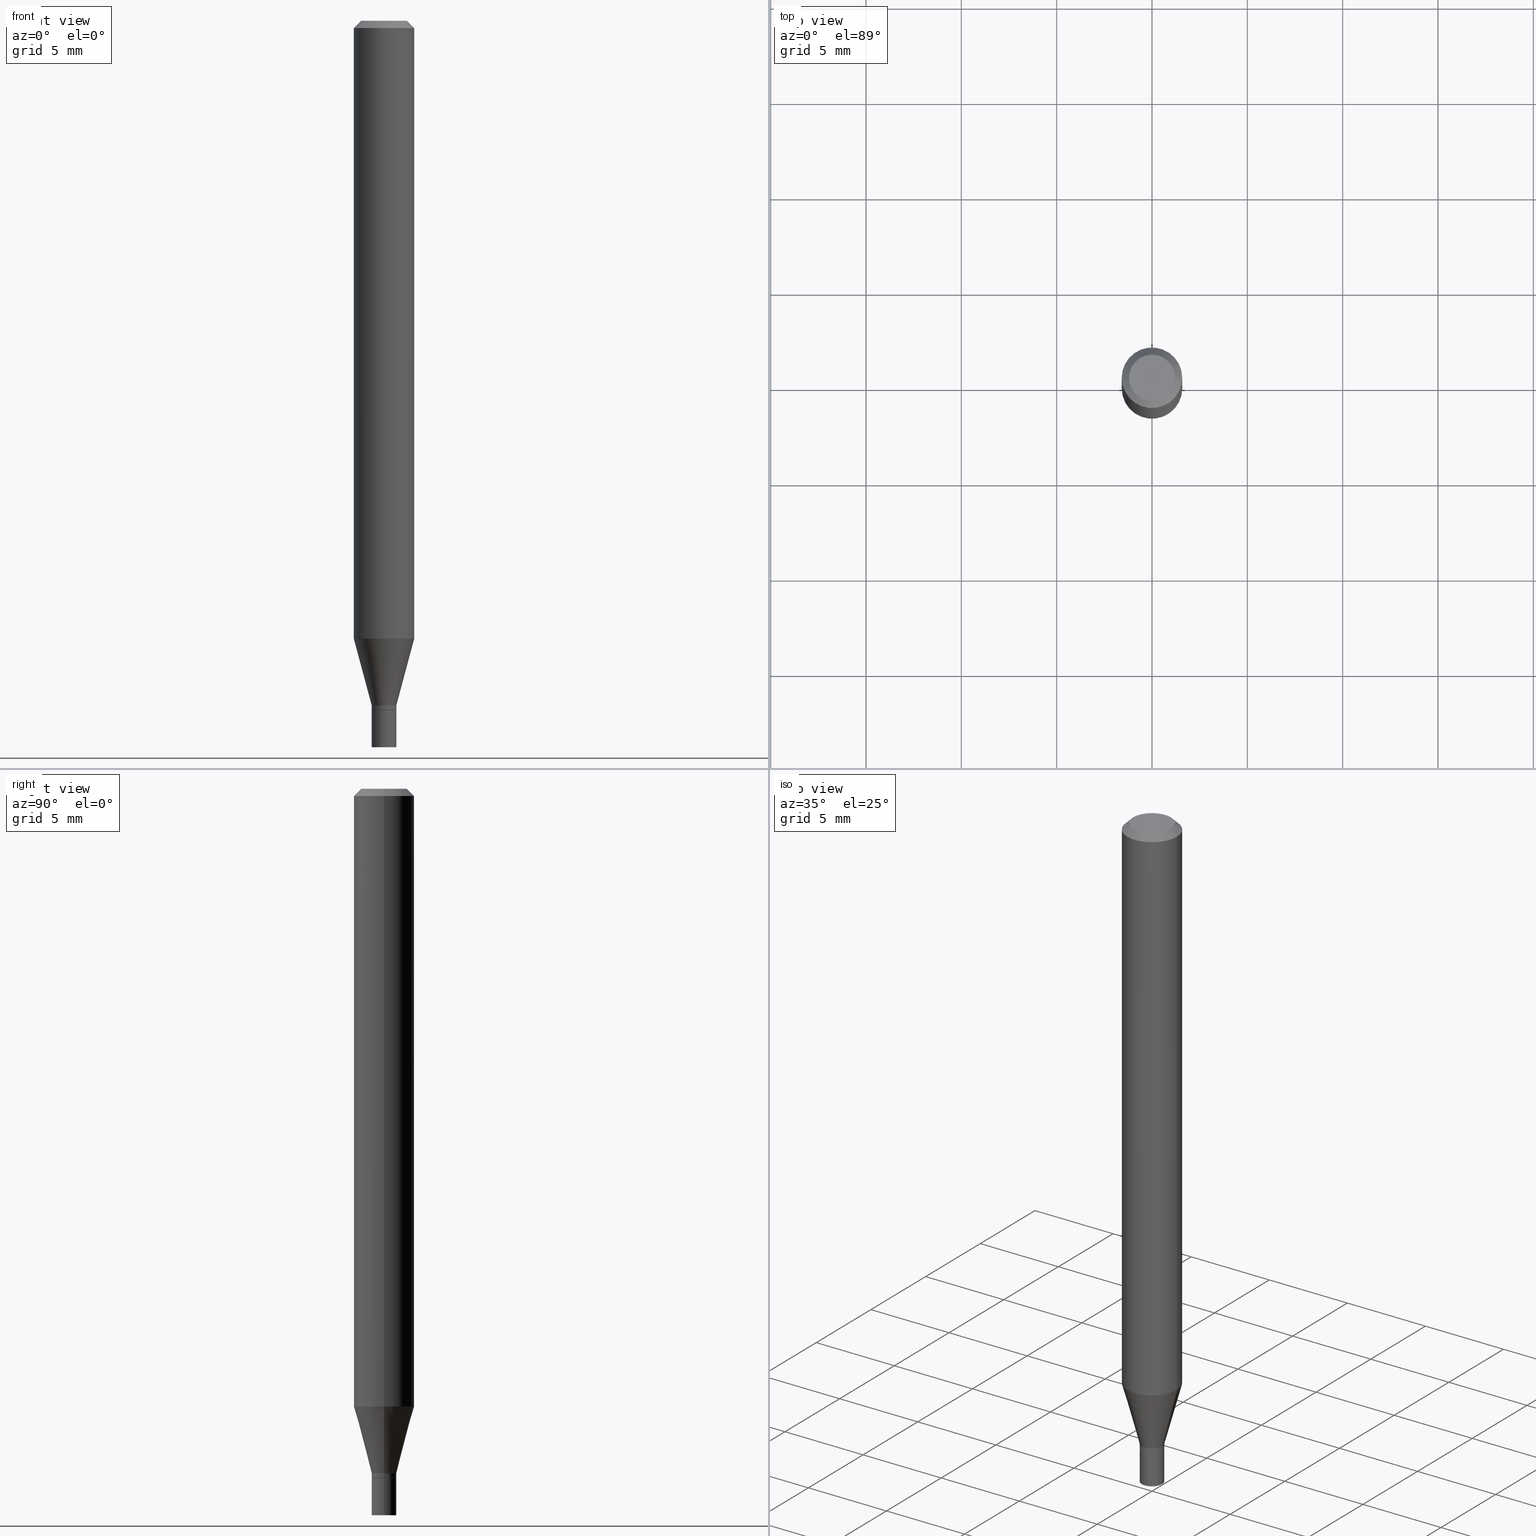
[diagram: canonical four-view strip — front | top / right | iso, engineering-drawing reading convention]
A machine part, canonical four-view strip (front | top / right | iso — engineering-drawing reading convention). The complete STEP part file that produces these views, byte-faithful:
ISO-10303-21;
HEADER;
FILE_DESCRIPTION (( 'STEP AP203' ),
    '1' );
FILE_NAME ('01131.STEP',
    '2024-03-19T23:12:32',
    ( '' ),
    ( '' ),
    'SwSTEP 2.0',
    'SolidWorks 2023',
    '' );
FILE_SCHEMA (( 'CONFIG_CONTROL_DESIGN' ));
ENDSEC;

DATA;
#1 = CARTESIAN_POINT ( 'NONE',  ( 3.668203209277704895E-29, -5.237222008264718177E-15, -1.500000000000000222 ) ) ;
#2 = PRODUCT_DEFINITION_SHAPE ( 'NONE', 'NONE',  #39 ) ;
#3 = DIMENSIONAL_EXPONENTS ( 1.000000000000000000, 0.000000000000000000, 0.000000000000000000, 0.000000000000000000, 0.000000000000000000, 0.000000000000000000, 0.000000000000000000 ) ;
#4 = CARTESIAN_POINT ( 'NONE',  ( -0.02549999999999999836, -4.922484449435141923E-15, -1.500000000000000222 ) ) ;
#5 = DIRECTION ( 'NONE',  ( 1.000000000000000000, -6.982962677686266711E-15, 0.000000000000000000 ) ) ;
#6 = AXIS2_PLACEMENT_3D ( 'NONE', #229, #188, #297 ) ;
#7 = CONICAL_SURFACE ( 'NONE', #248, 0.06250000000000000000, 0.7853981633974667087 ) ;
#8 = EDGE_LOOP ( 'NONE', ( #81, #404, #449, #135 ) ) ;
#9 = COORDINATED_UNIVERSAL_TIME_OFFSET ( 5, 0, .BEHIND. ) ;
#10 = DIRECTION ( 'NONE',  ( 1.000000000000000000, -6.982962677686267499E-15, 4.852736867747366768E-29 ) ) ;
#11 = ORIENTED_EDGE ( 'NONE', *, *, #398, .T. ) ;
#12 = LINE ( 'NONE', #416, #44 ) ;
#13 = AXIS2_PLACEMENT_3D ( 'NONE', #420, #132, #245 ) ;
#14 = DIRECTION ( 'NONE',  ( -2.445468806185136597E-29, 3.491481338843145583E-15, 1.000000000000000000 ) ) ;
#15 = ORIENTED_EDGE ( 'NONE', *, *, #201, .T. ) ;
#16 = CC_DESIGN_PERSON_AND_ORGANIZATION_ASSIGNMENT ( #343, #24, ( #51 ) ) ;
#17 = CIRCLE ( 'NONE', #246, 0.06250000000000000000 ) ;
#18 = CONICAL_SURFACE ( 'NONE', #57, 0.02549999999999992203, 0.2617993877991494078 ) ;
#19 = DATE_AND_TIME ( #242, #111 ) ;
#20 = ORIENTED_EDGE ( 'NONE', *, *, #53, .T. ) ;
#21 = CARTESIAN_POINT ( 'NONE',  ( 3.668203209277705088E-31, -5.237222008264718399E-17, -0.01499999999999999944 ) ) ;
#22 = DATE_AND_TIME ( #168, #238 ) ;
#23 = CC_DESIGN_PERSON_AND_ORGANIZATION_ASSIGNMENT ( #89, #127, ( #39 ) ) ;
#24 = PERSON_AND_ORGANIZATION_ROLE ( 'design_supplier' ) ;
#25 = ORIENTED_EDGE ( 'NONE', *, *, #360, .T. ) ;
#26 = CARTESIAN_POINT ( 'NONE',  ( -0.02549999999999999836, -4.922484449435141923E-15, -1.423499999999999988 ) ) ;
#27 = CIRCLE ( 'NONE', #444, 0.02549999999999999836 ) ;
#28 = EDGE_LOOP ( 'NONE', ( #124, #131 ) ) ;
#29 = DIRECTION ( 'NONE',  ( 1.000000000000000000, -6.982962677686255667E-15, 0.000000000000000000 ) ) ;
#30 = CARTESIAN_POINT ( 'NONE',  ( 3.118985445721404190E-29, -4.453084599695860332E-15, -1.275414120119951367 ) ) ;
#31 = VERTEX_POINT ( 'NONE', #287 ) ;
#32 = ORIENTED_EDGE ( 'NONE', *, *, #341, .T. ) ;
#33 = DIRECTION ( 'NONE',  ( -1.000000000000000000, 6.982962677686265922E-15, -4.876176775795935793E-29 ) ) ;
#34 = PERSON_AND_ORGANIZATION_ROLE ( 'design_owner' ) ;
#35 = CARTESIAN_POINT ( 'NONE',  ( 0.000000000000000000, 0.000000000000000000, 0.000000000000000000 ) ) ;
#36 = VECTOR ( 'NONE', #288, 39.37007874015748143 ) ;
#37 = SECURITY_CLASSIFICATION ( '', '', #425 ) ;
#38 = DIRECTION ( 'NONE',  ( -2.445468806185136597E-29, 3.491481338843145583E-15, 1.000000000000000000 ) ) ;
#39 = PRODUCT_DEFINITION ( 'UNKNOWN', '', #51, #102 ) ;
#40 = CARTESIAN_POINT ( 'NONE',  ( 0.06250000000000000000, -4.888073874380388472E-16, -0.01499999999999999944 ) ) ;
#41 = FACE_OUTER_BOUND ( 'NONE', #431, .T. ) ;
#42 = APPLICATION_PROTOCOL_DEFINITION ( 'international standard', 'config_control_design', 1994, #464 ) ;
#43 = ORIENTED_EDGE ( 'NONE', *, *, #195, .T. ) ;
#44 = VECTOR ( 'NONE', #93, 39.37007874015748143 ) ;
#45 = PERSON_AND_ORGANIZATION ( #423, #316 ) ;
#46 = DIRECTION ( 'NONE',  ( 2.445468806185136597E-29, -3.491481338843145583E-15, -1.000000000000000000 ) ) ;
#47 = ORIENTED_EDGE ( 'NONE', *, *, #360, .F. ) ;
#48 = ORIENTED_EDGE ( 'NONE', *, *, #249, .T. ) ;
#49 = CIRCLE ( 'NONE', #275, 0.02549999999999999836 ) ;
#50 = CARTESIAN_POINT ( 'NONE',  ( 1.338927666171699620E-44, -1.911633854693045944E-30, -5.475136966724958768E-16 ) ) ;
#51 = PRODUCT_DEFINITION_FORMATION_WITH_SPECIFIED_SOURCE ( 'ANY', '', #161, .NOT_KNOWN. ) ;
#52 = APPROVAL_STATUS ( 'not_yet_approved' ) ;
#53 = EDGE_CURVE ( 'NONE', #293, #247, #254, .T. ) ;
#54 = FACE_OUTER_BOUND ( 'NONE', #107, .T. ) ;
#55 = VERTEX_POINT ( 'NONE', #176 ) ;
#56 = DIRECTION ( 'NONE',  ( -2.445468806185136597E-29, 3.491481338843145583E-15, 1.000000000000000000 ) ) ;
#57 = AXIS2_PLACEMENT_3D ( 'NONE', #200, #174, #356 ) ;
#58 = CARTESIAN_POINT ( 'NONE',  ( 0.06250000000000000000, -4.364351673553916694E-16, 3.047610484872459871E-30 ) ) ;
#59 = APPROVAL_PERSON_ORGANIZATION ( #45, #90, #333 ) ;
#60 = ADVANCED_FACE ( 'NONE', ( #317 ), #322, .F. ) ;
#61 = CYLINDRICAL_SURFACE ( 'NONE', #186, 0.02549999999999999836 ) ;
#62 = COORDINATED_UNIVERSAL_TIME_OFFSET ( 5, 0, .BEHIND. ) ;
#63 = VERTEX_POINT ( 'NONE', #281 ) ;
#64 = FACE_OUTER_BOUND ( 'NONE', #28, .T. ) ;
#65 = LINE ( 'NONE', #209, #139 ) ;
#66 = DIRECTION ( 'NONE',  ( 0.7071067811865656694, -2.468850131082446387E-15, 0.7071067811865294761 ) ) ;
#67 = UNCERTAINTY_MEASURE_WITH_UNIT (LENGTH_MEASURE( 1.000000000000000082E-05 ), #388, 'distance_accuracy_value', 'NONE');
#68 = CARTESIAN_POINT ( 'NONE',  ( 3.479902111201449341E-29, -4.968377945173796372E-15, -1.423000000000000043 ) ) ;
#69 = VECTOR ( 'NONE', #177, 39.37007874015748143 ) ;
#70 = AXIS2_PLACEMENT_3D ( 'NONE', #363, #295, #143 ) ;
#71 = ADVANCED_FACE ( 'NONE', ( #64 ), #227, .F. ) ;
#72 = DIRECTION ( 'NONE',  ( 2.445468806185136597E-29, -3.491481338843145583E-15, -1.000000000000000000 ) ) ;
#73 = FACE_OUTER_BOUND ( 'NONE', #312, .T. ) ;
#74 = FACE_OUTER_BOUND ( 'NONE', #218, .T. ) ;
#75 = VECTOR ( 'NONE', #351, 39.37007874015748143 ) ;
#76 = EDGE_CURVE ( 'NONE', #253, #63, #17, .T. ) ;
#77 = AXIS2_PLACEMENT_3D ( 'NONE', #68, #340, #137 ) ;
#78 = DIRECTION ( 'NONE',  ( -2.445468806185136597E-29, 3.491481338843145583E-15, 1.000000000000000000 ) ) ;
#79 = DIRECTION ( 'NONE',  ( -0.7071067811865604513, 2.468850131082393139E-15, -0.7071067811865343611 ) ) ;
#80 = CARTESIAN_POINT ( 'NONE',  ( 3.456670157542691158E-29, -4.935208872454787015E-15, -1.413500000000000201 ) ) ;
#81 = ORIENTED_EDGE ( 'NONE', *, *, #123, .T. ) ;
#82 = ADVANCED_FACE ( 'NONE', ( #41 ), #97, .T. ) ;
#83 = ORIENTED_EDGE ( 'NONE', *, *, #413, .F. ) ;
#84 = AXIS2_PLACEMENT_3D ( 'NONE', #212, #382, #448 ) ;
#85 = APPROVAL_DATE_TIME ( #409, #90 ) ;
#86 = APPROVAL_PERSON_ORGANIZATION ( #213, #157, #250 ) ;
#87 = DIRECTION ( 'NONE',  ( -2.445468806185136597E-29, 3.491481338843145583E-15, 1.000000000000000000 ) ) ;
#88 = ORIENTED_EDGE ( 'NONE', *, *, #195, .F. ) ;
#89 = PERSON_AND_ORGANIZATION ( #423, #316 ) ;
#90 = APPROVAL ( #52, 'UNSPECIFIED' ) ;
#91 = APPLICATION_CONTEXT ( 'configuration controlled 3d designs of mechanical parts and assemblies' ) ;
#92 = CIRCLE ( 'NONE', #77, 0.02549999999999992203 ) ;
#93 = DIRECTION ( 'NONE',  ( -2.445468806185136877E-29, 3.491481338843145188E-15, 1.000000000000000000 ) ) ;
#94 = ORIENTED_EDGE ( 'NONE', *, *, #158, .F. ) ;
#95 = ORIENTED_EDGE ( 'NONE', *, *, #214, .F. ) ;
#96 = ORIENTED_EDGE ( 'NONE', *, *, #228, .T. ) ;
#97 = CONICAL_SURFACE ( 'NONE', #128, 0.06250000000000000000, 0.7853981633974667087 ) ;
#98 = AXIS2_PLACEMENT_3D ( 'NONE', #222, #224, #402 ) ;
#99 = LENGTH_MEASURE_WITH_UNIT ( LENGTH_MEASURE( 0.02539999999999999897 ), #130 );
#100 = APPROVAL_STATUS ( 'not_yet_approved' ) ;
#101 = EDGE_CURVE ( 'NONE', #280, #253, #199, .T. ) ;
#102 = DESIGN_CONTEXT ( 'detailed design', #91, 'design' ) ;
#103 = FACE_OUTER_BOUND ( 'NONE', #315, .T. ) ;
#104 = VECTOR ( 'NONE', #415, 39.37007874015748143 ) ;
#105 = APPROVAL_PERSON_ORGANIZATION ( #455, #378, #443 ) ;
#106 = CARTESIAN_POINT ( 'NONE',  ( 3.456670157542691158E-29, -4.935208872454787015E-15, -1.413500000000000201 ) ) ;
#107 = EDGE_LOOP ( 'NONE', ( #334, #96, #256, #410 ) ) ;
#108 = DIRECTION ( 'NONE',  ( -2.445468806185136597E-29, 3.491481338843145583E-15, 1.000000000000000000 ) ) ;
#109 = CC_DESIGN_PERSON_AND_ORGANIZATION_ASSIGNMENT ( #365, #34, ( #161 ) ) ;
#110 = CARTESIAN_POINT ( 'NONE',  ( -0.02549999999999992203, -4.787189547554971058E-15, -1.423000000000000043 ) ) ;
#111 = LOCAL_TIME ( 19, 12, 32.00000000000000000, #62 ) ;
#112 = DIRECTION ( 'NONE',  ( -1.000000000000000000, 6.982962677686266711E-15, 0.000000000000000000 ) ) ;
#113 = ORIENTED_EDGE ( 'NONE', *, *, #282, .T. ) ;
#114 = CARTESIAN_POINT ( 'NONE',  ( 1.338927666171699620E-44, -1.911633854693045944E-30, -5.475136966724958768E-16 ) ) ;
#115 = ORIENTED_EDGE ( 'NONE', *, *, #391, .F. ) ;
#116 = AXIS2_PLACEMENT_3D ( 'NONE', #106, #433, #136 ) ;
#117 = ADVANCED_FACE ( 'NONE', ( #350 ), #170, .T. ) ;
#118 = LINE ( 'NONE', #274, #36 ) ;
#119 = VECTOR ( 'NONE', #66, 39.37007874015748143 ) ;
#120 = SHAPE_DEFINITION_REPRESENTATION ( #2, #223 ) ;
#121 = AXIS2_PLACEMENT_3D ( 'NONE', #50, #192, #10 ) ;
#122 = ORIENTED_EDGE ( 'NONE', *, *, #142, .F. ) ;
#123 = EDGE_CURVE ( 'NONE', #293, #55, #352, .T. ) ;
#124 = ORIENTED_EDGE ( 'NONE', *, *, #249, .F. ) ;
#125 = DIRECTION ( 'NONE',  ( 1.000000000000000000, -6.982962677686275388E-15, 0.000000000000000000 ) ) ;
#126 = FACE_OUTER_BOUND ( 'NONE', #427, .T. ) ;
#127 = PERSON_AND_ORGANIZATION_ROLE ( 'creator' ) ;
#128 = AXIS2_PLACEMENT_3D ( 'NONE', #171, #46, #244 ) ;
#129 = CIRCLE ( 'NONE', #342, 0.06250000000000000000 ) ;
#130 =( LENGTH_UNIT ( ) NAMED_UNIT ( * ) SI_UNIT ( $, .METRE. ) );
#131 = ORIENTED_EDGE ( 'NONE', *, *, #133, .F. ) ;
#132 = DIRECTION ( 'NONE',  ( -2.445468806185136597E-29, 3.491481338843145583E-15, 1.000000000000000000 ) ) ;
#133 = EDGE_CURVE ( 'NONE', #236, #175, #27, .T. ) ;
#134 = DIRECTION ( 'NONE',  ( -2.438088387897960049E-29, 3.491481338843145188E-15, 1.000000000000000000 ) ) ;
#135 = ORIENTED_EDGE ( 'NONE', *, *, #53, .F. ) ;
#136 = DIRECTION ( 'NONE',  ( 1.000000000000000000, -6.982962677686258822E-15, 0.000000000000000000 ) ) ;
#137 = DIRECTION ( 'NONE',  ( 1.000000000000000000, -6.982962677686258822E-15, 0.000000000000000000 ) ) ;
#138 = LINE ( 'NONE', #329, #69 ) ;
#139 = VECTOR ( 'NONE', #387, 39.37007874015748854 ) ;
#140 = ORIENTED_EDGE ( 'NONE', *, *, #374, .F. ) ;
#141 = MANIFOLD_SOLID_BREP ( 'Body-Move/Copy2[1]', #196 ) ;
#142 = EDGE_CURVE ( 'NONE', #55, #293, #147, .T. ) ;
#143 = DIRECTION ( 'NONE',  ( -1.000000000000000000, 6.982962677686265922E-15, -4.876176775795935793E-29 ) ) ;
#144 = CARTESIAN_POINT ( 'NONE',  ( 3.668203209277705088E-31, -5.237222008264718399E-17, -0.01499999999999999944 ) ) ;
#145 = CYLINDRICAL_SURFACE ( 'NONE', #337, 0.06250000000000000000 ) ;
#146 = CARTESIAN_POINT ( 'NONE',  ( 3.316907271900976096E-16, 0.04749999999999999362, -4.396022119312973841E-16 ) ) ;
#147 = CIRCLE ( 'NONE', #6, 0.02499999999999999792 ) ;
#148 = CIRCLE ( 'NONE', #330, 0.02549999999999999836 ) ;
#149 = LOCAL_TIME ( 19, 12, 32.00000000000000000, #385 ) ;
#150 = CARTESIAN_POINT ( 'NONE',  ( 3.118985445721404190E-29, -4.453084599695860332E-15, -1.275414120119951367 ) ) ;
#151 = ADVANCED_FACE ( 'NONE', ( #73 ), #359, .T. ) ;
#152 = ORIENTED_EDGE ( 'NONE', *, *, #320, .F. ) ;
#153 = ORIENTED_EDGE ( 'NONE', *, *, #101, .F. ) ;
#154 = FACE_OUTER_BOUND ( 'NONE', #8, .T. ) ;
#155 = ORIENTED_EDGE ( 'NONE', *, *, #320, .T. ) ;
#156 = AXIS2_PLACEMENT_3D ( 'NONE', #80, #328, #432 ) ;
#157 = APPROVAL ( #421, 'UNSPECIFIED' ) ;
#158 = EDGE_CURVE ( 'NONE', #63, #335, #138, .T. ) ;
#159 = LINE ( 'NONE', #278, #104 ) ;
#160 = EDGE_LOOP ( 'NONE', ( #140, #232, #20, #88 ) ) ;
#161 = PRODUCT ( '01131', '01131', '', ( #264 ) ) ;
#162 = PERSON_AND_ORGANIZATION_ROLE ( 'classification_officer' ) ;
#163 = ORIENTED_EDGE ( 'NONE', *, *, #214, .T. ) ;
#164 = DIRECTION ( 'NONE',  ( -2.445468806185136597E-29, 3.491481338843145583E-15, 1.000000000000000000 ) ) ;
#165 = LINE ( 'NONE', #58, #75 ) ;
#166 = ORIENTED_EDGE ( 'NONE', *, *, #327, .T. ) ;
#167 = EDGE_LOOP ( 'NONE', ( #94, #308, #190, #95 ) ) ;
#168 = CALENDAR_DATE ( 2024, 19, 3 ) ;
#169 = ORIENTED_EDGE ( 'NONE', *, *, #133, .T. ) ;
#170 = CONICAL_SURFACE ( 'NONE', #435, 0.02499999999999999792, 0.7853981633974739252 ) ;
#171 = CARTESIAN_POINT ( 'NONE',  ( 3.668203209277705088E-31, -5.237222008264718399E-17, -0.01499999999999999944 ) ) ;
#172 = ADVANCED_FACE ( 'NONE', ( #458 ), #180, .T. ) ;
#173 = CARTESIAN_POINT ( 'NONE',  ( 3.668203209277704895E-29, -5.237222008264718177E-15, -1.500000000000000222 ) ) ;
#174 = DIRECTION ( 'NONE',  ( -2.445468806185136597E-29, 3.491481338843145583E-15, 1.000000000000000000 ) ) ;
#175 = VERTEX_POINT ( 'NONE', #292 ) ;
#176 = CARTESIAN_POINT ( 'NONE',  ( -0.02499999999999999792, -4.789838774729081470E-15, -1.423499999999999988 ) ) ;
#177 = DIRECTION ( 'NONE',  ( -2.445468806185136877E-29, 3.491481338843145188E-15, 1.000000000000000000 ) ) ;
#178 = DIRECTION ( 'NONE',  ( 1.000000000000000000, -6.982962677686262766E-15, 0.000000000000000000 ) ) ;
#179 = ORIENTED_EDGE ( 'NONE', *, *, #241, .T. ) ;
#180 = CYLINDRICAL_SURFACE ( 'NONE', #98, 0.02549999999999999836 ) ;
#181 = DIRECTION ( 'NONE',  ( 1.000000000000000000, 0.000000000000000000, 0.000000000000000000 ) ) ;
#182 = EDGE_CURVE ( 'NONE', #266, #457, #148, .T. ) ;
#183 = ORIENTED_EDGE ( 'NONE', *, *, #228, .F. ) ;
#184 = CARTESIAN_POINT ( 'NONE',  ( 0.02549999999999992203, -5.146443493454795258E-15, -1.423000000000000043 ) ) ;
#185 = CARTESIAN_POINT ( 'NONE',  ( 0.000000000000000000, 0.000000000000000000, 0.000000000000000000 ) ) ;
#186 = AXIS2_PLACEMENT_3D ( 'NONE', #419, #384, #202 ) ;
#187 = CARTESIAN_POINT ( 'NONE',  ( 3.479902111201449341E-29, -4.968377945173796372E-15, -1.423000000000000043 ) ) ;
#188 = DIRECTION ( 'NONE',  ( -2.445468806185136597E-29, 3.491481338843145583E-15, 1.000000000000000000 ) ) ;
#189 = ADVANCED_FACE ( 'NONE', ( #396 ), #353, .T. ) ;
#190 = ORIENTED_EDGE ( 'NONE', *, *, #447, .T. ) ;
#191 = CC_DESIGN_APPROVAL ( #157, ( #51 ) ) ;
#192 = DIRECTION ( 'NONE',  ( -2.445468806185136597E-29, 3.491481338843145583E-15, 1.000000000000000000 ) ) ;
#193 = DIRECTION ( 'NONE',  ( 1.000000000000000000, -6.982962677686267499E-15, 4.852736867747366768E-29 ) ) ;
#194 = ORIENTED_EDGE ( 'NONE', *, *, #182, .F. ) ;
#195 = EDGE_CURVE ( 'NONE', #268, #247, #207, .T. ) ;
#196 = CLOSED_SHELL ( 'NONE', ( #310, #71, #172, #267 ) ) ;
#197 = DATE_AND_TIME ( #389, #369 ) ;
#198 = DIRECTION ( 'NONE',  ( 1.000000000000000000, -6.982962677686266711E-15, 4.876176775795935793E-29 ) ) ;
#199 = LINE ( 'NONE', #215, #325 ) ;
#200 = CARTESIAN_POINT ( 'NONE',  ( 3.456670157542691158E-29, -4.935208872454787015E-15, -1.413500000000000201 ) ) ;
#201 = EDGE_CURVE ( 'NONE', #466, #63, #260, .T. ) ;
#202 = DIRECTION ( 'NONE',  ( 1.000000000000000000, -6.982962677686266711E-15, 4.876176775795935793E-29 ) ) ;
#203 = CLOSED_SHELL ( 'NONE', ( #151, #355, #82, #439, #189, #368, #305, #257, #276, #60, #117, #332 ) ) ;
#204 = PERSON_AND_ORGANIZATION_ROLE ( 'creator' ) ;
#205 = ORIENTED_EDGE ( 'NONE', *, *, #460, .F. ) ;
#206 = ORIENTED_EDGE ( 'NONE', *, *, #76, .T. ) ;
#207 = CIRCLE ( 'NONE', #216, 0.02549999999999992203 ) ;
#208 = DIRECTION ( 'NONE',  ( 1.000000000000000000, -6.982962677686255667E-15, 0.000000000000000000 ) ) ;
#209 = CARTESIAN_POINT ( 'NONE',  ( 0.06250000000000000000, -4.811533449433679005E-16, -0.01499999999999999944 ) ) ;
#210 = CALENDAR_DATE ( 2024, 19, 3 ) ;
#211 = ORIENTED_EDGE ( 'NONE', *, *, #296, .T. ) ;
#212 = CARTESIAN_POINT ( 'NONE',  ( 0.000000000000000000, 0.000000000000000000, 0.000000000000000000 ) ) ;
#213 = PERSON_AND_ORGANIZATION ( #423, #316 ) ;
#214 = EDGE_CURVE ( 'NONE', #335, #233, #306, .T. ) ;
#215 = CARTESIAN_POINT ( 'NONE',  ( 0.02549999999999992203, -5.113274420735785901E-15, -1.413500000000000201 ) ) ;
#216 = AXIS2_PLACEMENT_3D ( 'NONE', #187, #108, #430 ) ;
#217 = CC_DESIGN_SECURITY_CLASSIFICATION ( #37, ( #51 ) ) ;
#218 = EDGE_LOOP ( 'NONE', ( #456, #380 ) ) ;
#219 = CARTESIAN_POINT ( 'NONE',  ( 3.481124845604542143E-29, -4.970123685843217876E-15, -1.423499999999999988 ) ) ;
#220 = PLANE ( 'NONE',  #70 ) ;
#221 = PRODUCT_RELATED_PRODUCT_CATEGORY ( 'detail', '', ( #161 ) ) ;
#222 = CARTESIAN_POINT ( 'NONE',  ( 0.000000000000000000, 0.000000000000000000, 0.000000000000000000 ) ) ;
#223 = ADVANCED_BREP_SHAPE_REPRESENTATION ( '01131', ( #141, #299, #436 ), #376 ) ;
#224 = DIRECTION ( 'NONE',  ( -2.445468806185136597E-29, 3.491481338843145583E-15, 1.000000000000000000 ) ) ;
#225 = CIRCLE ( 'NONE', #269, 0.04749999999999999362 ) ;
#226 = CARTESIAN_POINT ( 'NONE',  ( 0.02549999999999999836, -5.148189234124217550E-15, -1.423499999999999988 ) ) ;
#227 = PLANE ( 'NONE',  #417 ) ;
#228 = EDGE_CURVE ( 'NONE', #466, #280, #400, .T. ) ;
#229 = CARTESIAN_POINT ( 'NONE',  ( 3.481124845604542143E-29, -4.970123685843217876E-15, -1.423499999999999988 ) ) ;
#230 = DIRECTION ( 'NONE',  ( 0.000000000000000000, 0.000000000000000000, 1.000000000000000000 ) ) ;
#231 = CYLINDRICAL_SURFACE ( 'NONE', #367, 0.02549999999999992203 ) ;
#232 = ORIENTED_EDGE ( 'NONE', *, *, #142, .T. ) ;
#233 = VERTEX_POINT ( 'NONE', #40 ) ;
#234 = VECTOR ( 'NONE', #251, 39.37007874015748143 ) ;
#235 = APPLICATION_PROTOCOL_DEFINITION ( 'international standard', 'config_control_design', 1994, #91 ) ;
#236 = VERTEX_POINT ( 'NONE', #4 ) ;
#237 = CC_DESIGN_PERSON_AND_ORGANIZATION_ASSIGNMENT ( #349, #162, ( #37 ) ) ;
#238 = LOCAL_TIME ( 19, 12, 32.00000000000000000, #346 ) ;
#239 = CARTESIAN_POINT ( 'NONE',  ( -0.06250000000000000000, 3.840629472727444916E-16, -0.01499999999999999944 ) ) ;
#240 = FACE_OUTER_BOUND ( 'NONE', #167, .T. ) ;
#241 = EDGE_CURVE ( 'NONE', #280, #466, #418, .T. ) ;
#242 = CALENDAR_DATE ( 2024, 19, 3 ) ;
#243 = ORIENTED_EDGE ( 'NONE', *, *, #282, .F. ) ;
#244 = DIRECTION ( 'NONE',  ( -1.000000000000000000, 6.982962677686266711E-15, 0.000000000000000000 ) ) ;
#245 = DIRECTION ( 'NONE',  ( 1.000000000000000000, -6.982962677686275388E-15, 0.000000000000000000 ) ) ;
#246 = AXIS2_PLACEMENT_3D ( 'NONE', #150, #291, #408 ) ;
#247 = VERTEX_POINT ( 'NONE', #184 ) ;
#248 = AXIS2_PLACEMENT_3D ( 'NONE', #144, #72, #112 ) ;
#249 = EDGE_CURVE ( 'NONE', #175, #236, #49, .T. ) ;
#250 = APPROVAL_ROLE ( '' ) ;
#251 = DIRECTION ( 'NONE',  ( -2.445468806185136877E-29, 3.491481338843145188E-15, 1.000000000000000000 ) ) ;
#252 = COORDINATED_UNIVERSAL_TIME_OFFSET ( 5, 0, .BEHIND. ) ;
#253 = VERTEX_POINT ( 'NONE', #399 ) ;
#254 = LINE ( 'NONE', #390, #119 ) ;
#255 =( NAMED_UNIT ( * ) PLANE_ANGLE_UNIT ( ) SI_UNIT ( $, .RADIAN. ) );
#256 = ORIENTED_EDGE ( 'NONE', *, *, #101, .T. ) ;
#257 = ADVANCED_FACE ( 'NONE', ( #103 ), #7, .T. ) ;
#258 = CONICAL_SURFACE ( 'NONE', #465, 0.02499999999999999792, 0.7853981633974739252 ) ;
#259 = DIRECTION ( 'NONE',  ( -2.445468806185136597E-29, 3.491481338843145583E-15, 1.000000000000000000 ) ) ;
#260 = LINE ( 'NONE', #323, #394 ) ;
#261 = DIRECTION ( 'NONE',  ( -2.445468806185136597E-29, 3.491481338843145583E-15, 1.000000000000000000 ) ) ;
#262 = AXIS2_PLACEMENT_3D ( 'NONE', #146, #294, #33 ) ;
#263 = FACE_OUTER_BOUND ( 'NONE', #370, .T. ) ;
#264 = MECHANICAL_CONTEXT ( 'NONE', #464, 'mechanical' ) ;
#265 = EDGE_LOOP ( 'NONE', ( #152, #169, #211, #83 ) ) ;
#266 = VERTEX_POINT ( 'NONE', #226 ) ;
#267 = ADVANCED_FACE ( 'NONE', ( #74 ), #220, .F. ) ;
#268 = VERTEX_POINT ( 'NONE', #110 ) ;
#269 = AXIS2_PLACEMENT_3D ( 'NONE', #114, #87, #193 ) ;
#270 = LOCAL_TIME ( 19, 12, 32.00000000000000000, #9 ) ;
#271 = CARTESIAN_POINT ( 'NONE',  ( -0.06250000000000000000, -1.808639200039190892E-15, -0.01499999999999999944 ) ) ;
#272 = ORIENTED_EDGE ( 'NONE', *, *, #438, .T. ) ;
#273 = FACE_OUTER_BOUND ( 'NONE', #344, .T. ) ;
#274 = CARTESIAN_POINT ( 'NONE',  ( 0.02549999999999992203, -1.780655482809992805E-16, 1.243425077827959823E-30 ) ) ;
#275 = AXIS2_PLACEMENT_3D ( 'NONE', #1, #462, #397 ) ;
#276 = ADVANCED_FACE ( 'NONE', ( #263 ), #357, .F. ) ;
#277 = LINE ( 'NONE', #290, #429 ) ;
#278 = CARTESIAN_POINT ( 'NONE',  ( -0.02549999999999999836, 1.811883976188255358E-16, -1.254328448015001021E-30 ) ) ;
#279 = DATE_TIME_ROLE ( 'creation_date' ) ;
#280 = VERTEX_POINT ( 'NONE', #371 ) ;
#281 = CARTESIAN_POINT ( 'NONE',  ( -0.06250000000000000000, -4.008995389845797716E-15, -1.275414120119951367 ) ) ;
#282 = EDGE_CURVE ( 'NONE', #31, #372, #285, .T. ) ;
#283 = CARTESIAN_POINT ( 'NONE',  ( 0.04749999999999999362, -4.035134999187587991E-16, -5.475136966724933130E-16 ) ) ;
#284 = DIRECTION ( 'NONE',  ( -2.445468806185136597E-29, 3.491481338843145583E-15, 1.000000000000000000 ) ) ;
#285 = CIRCLE ( 'NONE', #121, 0.04749999999999999362 ) ;
#286 = DIRECTION ( 'NONE',  ( -2.445468806185136597E-29, 3.491481338843145583E-15, 1.000000000000000000 ) ) ;
#287 = CARTESIAN_POINT ( 'NONE',  ( -0.04749999999999999362, 3.578768372314200645E-16, -5.475136966724983420E-16 ) ) ;
#288 = DIRECTION ( 'NONE',  ( -2.445468806185136877E-29, 3.491481338843145188E-15, 1.000000000000000000 ) ) ;
#289 = CARTESIAN_POINT ( 'NONE',  ( 3.668203209277705088E-31, -5.237222008264718399E-17, -0.01499999999999999944 ) ) ;
#290 = CARTESIAN_POINT ( 'NONE',  ( -0.02499999999999999792, -4.792488001903192671E-15, -1.423499999999999988 ) ) ;
#291 = DIRECTION ( 'NONE',  ( -2.445468806185136597E-29, 3.491481338843145583E-15, 1.000000000000000000 ) ) ;
#292 = CARTESIAN_POINT ( 'NONE',  ( 0.02549999999999999836, -5.415287556545718640E-15, -1.500000000000000222 ) ) ;
#293 = VERTEX_POINT ( 'NONE', #373 ) ;
#294 = DIRECTION ( 'NONE',  ( 2.438088387897960049E-29, -3.491481338843145188E-15, -1.000000000000000000 ) ) ;
#295 = DIRECTION ( 'NONE',  ( 2.438088387897960049E-29, -3.491481338843145188E-15, -1.000000000000000000 ) ) ;
#296 = EDGE_CURVE ( 'NONE', #175, #266, #12, .T. ) ;
#297 = DIRECTION ( 'NONE',  ( 1.000000000000000000, -6.982962677686255667E-15, 0.000000000000000000 ) ) ;
#298 = AXIS2_PLACEMENT_3D ( 'NONE', #21, #286, #313 ) ;
#299 = MANIFOLD_SOLID_BREP ( 'Body-Move/Copy2[2]', #203 ) ;
#300 = CC_DESIGN_DATE_AND_TIME_ASSIGNMENT ( #377, #279, ( #39 ) ) ;
#301 = CALENDAR_DATE ( 2024, 19, 3 ) ;
#302 = ORIENTED_EDGE ( 'NONE', *, *, #76, .F. ) ;
#303 = CIRCLE ( 'NONE', #13, 0.02549999999999999836 ) ;
#304 = DIRECTION ( 'NONE',  ( -2.445468806185136597E-29, 3.491481338843145583E-15, 1.000000000000000000 ) ) ;
#305 = ADVANCED_FACE ( 'NONE', ( #240 ), #145, .T. ) ;
#306 = CIRCLE ( 'NONE', #361, 0.06250000000000000000 ) ;
#307 = APPROVAL_DATE_TIME ( #19, #157 ) ;
#308 = ORIENTED_EDGE ( 'NONE', *, *, #452, .T. ) ;
#309 = LINE ( 'NONE', #459, #234 ) ;
#310 = ADVANCED_FACE ( 'NONE', ( #273 ), #61, .T. ) ;
#311 = DIRECTION ( 'NONE',  ( -2.445468806185136597E-29, 3.491481338843145583E-15, 1.000000000000000000 ) ) ;
#312 = EDGE_LOOP ( 'NONE', ( #272, #11, #426, #47 ) ) ;
#313 = DIRECTION ( 'NONE',  ( 1.000000000000000000, -6.982962677686266711E-15, 0.000000000000000000 ) ) ;
#314 = DATE_TIME_ROLE ( 'classification_date' ) ;
#315 = EDGE_LOOP ( 'NONE', ( #205, #243, #166, #163 ) ) ;
#316 = ORGANIZATION ( 'UNSPECIFIED', 'UNSPECIFIED', '' ) ;
#317 = FACE_OUTER_BOUND ( 'NONE', #354, .T. ) ;
#318 = CARTESIAN_POINT ( 'NONE',  ( 3.481124845604542143E-29, -4.970123685843217876E-15, -1.423499999999999988 ) ) ;
#319 = CARTESIAN_POINT ( 'NONE',  ( -0.02549999999999992203, -4.381507932340880103E-15, -1.413500000000000201 ) ) ;
#320 = EDGE_CURVE ( 'NONE', #236, #457, #159, .T. ) ;
#321 = ORIENTED_EDGE ( 'NONE', *, *, #327, .F. ) ;
#322 = PLANE ( 'NONE',  #336 ) ;
#323 = CARTESIAN_POINT ( 'NONE',  ( -0.02549999999999992203, -4.754020474835961701E-15, -1.413500000000000201 ) ) ;
#324 = ORIENTED_EDGE ( 'NONE', *, *, #123, .F. ) ;
#325 = VECTOR ( 'NONE', #381, 39.37007874015748854 ) ;
#326 = DIRECTION ( 'NONE',  ( -0.2588190451025206840, 5.211531920934545520E-15, 0.9659258262890682012 ) ) ;
#327 = EDGE_CURVE ( 'NONE', #31, #335, #442, .T. ) ;
#328 = DIRECTION ( 'NONE',  ( -2.445468806185136597E-29, 3.491481338843145583E-15, 1.000000000000000000 ) ) ;
#329 = CARTESIAN_POINT ( 'NONE',  ( -0.06250000000000000000, 4.440892098500626162E-16, -3.074334431409316114E-30 ) ) ;
#330 = AXIS2_PLACEMENT_3D ( 'NONE', #318, #261, #362 ) ;
#331 = EDGE_LOOP ( 'NONE', ( #179, #15, #302, #153 ) ) ;
#332 = ADVANCED_FACE ( 'NONE', ( #403 ), #231, .T. ) ;
#333 = APPROVAL_ROLE ( '' ) ;
#334 = ORIENTED_EDGE ( 'NONE', *, *, #201, .F. ) ;
#335 = VERTEX_POINT ( 'NONE', #271 ) ;
#336 = AXIS2_PLACEMENT_3D ( 'NONE', #219, #461, #450 ) ;
#337 = AXIS2_PLACEMENT_3D ( 'NONE', #392, #284, #198 ) ;
#338 = APPROVAL_DATE_TIME ( #197, #378 ) ;
#339 = CARTESIAN_POINT ( 'NONE',  ( 3.481124845604542143E-29, -4.970123685843217876E-15, -1.423499999999999988 ) ) ;
#340 = DIRECTION ( 'NONE',  ( -2.445468806185136597E-29, 3.491481338843145583E-15, 1.000000000000000000 ) ) ;
#341 = EDGE_CURVE ( 'NONE', #372, #31, #225, .T. ) ;
#342 = AXIS2_PLACEMENT_3D ( 'NONE', #30, #348, #178 ) ;
#343 = PERSON_AND_ORGANIZATION ( #423, #316 ) ;
#344 = EDGE_LOOP ( 'NONE', ( #48, #155, #194, #366 ) ) ;
#345 = CARTESIAN_POINT ( 'NONE',  ( 3.481124845604542143E-29, -4.970123685843217876E-15, -1.423499999999999988 ) ) ;
#346 = COORDINATED_UNIVERSAL_TIME_OFFSET ( 5, 0, .BEHIND. ) ;
#347 = ORIENTED_EDGE ( 'NONE', *, *, #460, .T. ) ;
#348 = DIRECTION ( 'NONE',  ( -2.445468806185136597E-29, 3.491481338843145583E-15, 1.000000000000000000 ) ) ;
#349 = PERSON_AND_ORGANIZATION ( #423, #316 ) ;
#350 = FACE_OUTER_BOUND ( 'NONE', #160, .T. ) ;
#351 = DIRECTION ( 'NONE',  ( -2.445468806185136877E-29, 3.491481338843145188E-15, 1.000000000000000000 ) ) ;
#352 = CIRCLE ( 'NONE', #375, 0.02499999999999999792 ) ;
#353 = CONICAL_SURFACE ( 'NONE', #116, 0.02549999999999992203, 0.2617993877991494078 ) ;
#354 = EDGE_LOOP ( 'NONE', ( #324, #122 ) ) ;
#355 = ADVANCED_FACE ( 'NONE', ( #154 ), #258, .T. ) ;
#356 = DIRECTION ( 'NONE',  ( 1.000000000000000000, -6.982962677686258822E-15, 0.000000000000000000 ) ) ;
#357 = PLANE ( 'NONE',  #262 ) ;
#358 = ORIENTED_EDGE ( 'NONE', *, *, #341, .F. ) ;
#359 = CYLINDRICAL_SURFACE ( 'NONE', #393, 0.02549999999999992203 ) ;
#360 = EDGE_CURVE ( 'NONE', #247, #280, #118, .T. ) ;
#361 = AXIS2_PLACEMENT_3D ( 'NONE', #289, #78, #5 ) ;
#362 = DIRECTION ( 'NONE',  ( 1.000000000000000000, -6.982962677686275388E-15, 0.000000000000000000 ) ) ;
#363 = CARTESIAN_POINT ( 'NONE',  ( 1.780655482810346066E-16, 0.02549999999999503011, -1.423499999999999988 ) ) ;
#364 = DIRECTION ( 'NONE',  ( 1.000000000000000000, -6.982962677686267499E-15, 4.876176775795935793E-29 ) ) ;
#365 = PERSON_AND_ORGANIZATION ( #423, #316 ) ;
#366 = ORIENTED_EDGE ( 'NONE', *, *, #296, .F. ) ;
#367 = AXIS2_PLACEMENT_3D ( 'NONE', #463, #304, #440 ) ;
#368 = ADVANCED_FACE ( 'NONE', ( #54 ), #18, .T. ) ;
#369 = LOCAL_TIME ( 19, 12, 32.00000000000000000, #252 ) ;
#370 = EDGE_LOOP ( 'NONE', ( #113, #32 ) ) ;
#371 = CARTESIAN_POINT ( 'NONE',  ( 0.02549999999999992203, -5.113274420735785901E-15, -1.413500000000000201 ) ) ;
#372 = VERTEX_POINT ( 'NONE', #283 ) ;
#373 = CARTESIAN_POINT ( 'NONE',  ( 0.02499999999999999792, -5.144697752785373754E-15, -1.423499999999999988 ) ) ;
#374 = EDGE_CURVE ( 'NONE', #55, #268, #277, .T. ) ;
#375 = AXIS2_PLACEMENT_3D ( 'NONE', #345, #164, #29 ) ;
#376 =( GEOMETRIC_REPRESENTATION_CONTEXT ( 3 ) GLOBAL_UNCERTAINTY_ASSIGNED_CONTEXT ( ( #67 ) ) GLOBAL_UNIT_ASSIGNED_CONTEXT ( ( #388, #255, #434 ) ) REPRESENTATION_CONTEXT ( 'NONE', 'WORKASPACE' ) );
#377 = DATE_AND_TIME ( #210, #149 ) ;
#378 = APPROVAL ( #100, 'UNSPECIFIED' ) ;
#379 = PERSON_AND_ORGANIZATION ( #423, #316 ) ;
#380 = ORIENTED_EDGE ( 'NONE', *, *, #413, .T. ) ;
#381 = DIRECTION ( 'NONE',  ( 0.2588190451025206840, 1.565188264969626504E-15, 0.9659258262890682012 ) ) ;
#382 = DIRECTION ( 'NONE',  ( -2.445468806185136597E-29, 3.491481338843145583E-15, 1.000000000000000000 ) ) ;
#383 = CIRCLE ( 'NONE', #298, 0.06250000000000000000 ) ;
#384 = DIRECTION ( 'NONE',  ( -2.445468806185136597E-29, 3.491481338843145583E-15, 1.000000000000000000 ) ) ;
#385 = COORDINATED_UNIVERSAL_TIME_OFFSET ( 5, 0, .BEHIND. ) ;
#386 = ORIENTED_EDGE ( 'NONE', *, *, #447, .F. ) ;
#387 = DIRECTION ( 'NONE',  ( 0.7071067811865604513, -7.319954787623298644E-15, -0.7071067811865343611 ) ) ;
#388 =( CONVERSION_BASED_UNIT ( 'INCH', #99 ) LENGTH_UNIT ( ) NAMED_UNIT ( #3 ) );
#389 = CALENDAR_DATE ( 2024, 19, 3 ) ;
#390 = CARTESIAN_POINT ( 'NONE',  ( 0.02499999999999999792, -5.144697752785373754E-15, -1.423499999999999988 ) ) ;
#391 = EDGE_CURVE ( 'NONE', #233, #335, #383, .T. ) ;
#392 = CARTESIAN_POINT ( 'NONE',  ( 0.000000000000000000, 0.000000000000000000, 0.000000000000000000 ) ) ;
#393 = AXIS2_PLACEMENT_3D ( 'NONE', #35, #38, #364 ) ;
#394 = VECTOR ( 'NONE', #326, 39.37007874015748854 ) ;
#395 = ORIENTED_EDGE ( 'NONE', *, *, #398, .F. ) ;
#396 = FACE_OUTER_BOUND ( 'NONE', #331, .T. ) ;
#397 = DIRECTION ( 'NONE',  ( 1.000000000000000000, -6.982962677686275388E-15, 0.000000000000000000 ) ) ;
#398 = EDGE_CURVE ( 'NONE', #268, #466, #309, .T. ) ;
#399 = CARTESIAN_POINT ( 'NONE',  ( 0.06250000000000000000, -4.889519767051251212E-15, -1.275414120119951367 ) ) ;
#400 = CIRCLE ( 'NONE', #156, 0.02549999999999992203 ) ;
#401 = DIRECTION ( 'NONE',  ( 1.000000000000000000, -6.982962677686258822E-15, 0.000000000000000000 ) ) ;
#402 = DIRECTION ( 'NONE',  ( 1.000000000000000000, -6.982962677686266711E-15, 4.876176775795935793E-29 ) ) ;
#403 = FACE_OUTER_BOUND ( 'NONE', #407, .T. ) ;
#404 = ORIENTED_EDGE ( 'NONE', *, *, #374, .T. ) ;
#405 = DIRECTION ( 'NONE',  ( 1.000000000000000000, -6.982962677686265922E-15, 4.876176775795935793E-29 ) ) ;
#406 = CC_DESIGN_DATE_AND_TIME_ASSIGNMENT ( #22, #314, ( #37 ) ) ;
#407 = EDGE_LOOP ( 'NONE', ( #395, #43, #25, #183 ) ) ;
#408 = DIRECTION ( 'NONE',  ( 1.000000000000000000, -6.982962677686262766E-15, 0.000000000000000000 ) ) ;
#409 = DATE_AND_TIME ( #301, #270 ) ;
#410 = ORIENTED_EDGE ( 'NONE', *, *, #452, .F. ) ;
#411 = CARTESIAN_POINT ( 'NONE',  ( 3.481124845604542143E-29, -4.970123685843217876E-15, -1.423499999999999988 ) ) ;
#412 = ORIENTED_EDGE ( 'NONE', *, *, #391, .T. ) ;
#413 = EDGE_CURVE ( 'NONE', #457, #266, #303, .T. ) ;
#414 = CARTESIAN_POINT ( 'NONE',  ( 3.584916967085606921E-29, -5.356492647442320375E-15, -1.500000000000000222 ) ) ;
#415 = DIRECTION ( 'NONE',  ( -2.445468806185136877E-29, 3.491481338843145188E-15, 1.000000000000000000 ) ) ;
#416 = CARTESIAN_POINT ( 'NONE',  ( 0.02549999999999999836, -1.780655482809997982E-16, 1.243425077827963501E-30 ) ) ;
#417 = AXIS2_PLACEMENT_3D ( 'NONE', #414, #134, #405 ) ;
#418 = CIRCLE ( 'NONE', #454, 0.02549999999999992203 ) ;
#419 = CARTESIAN_POINT ( 'NONE',  ( 0.000000000000000000, 0.000000000000000000, 0.000000000000000000 ) ) ;
#420 = CARTESIAN_POINT ( 'NONE',  ( 3.481124845604542143E-29, -4.970123685843217876E-15, -1.423499999999999988 ) ) ;
#421 = APPROVAL_STATUS ( 'not_yet_approved' ) ;
#422 = DIRECTION ( 'NONE',  ( -0.7071067811865656694, 7.493145998870420424E-15, 0.7071067811865294761 ) ) ;
#423 = PERSON ( 'UNSPECIFIED', 'UNSPECIFIED', 'UNSPECIFIED', ('UNSPECIFIED'), ('UNSPECIFIED'), ('UNSPECIFIED') ) ;
#424 = CC_DESIGN_PERSON_AND_ORGANIZATION_ASSIGNMENT ( #379, #204, ( #51 ) ) ;
#425 = SECURITY_CLASSIFICATION_LEVEL ( 'unclassified' ) ;
#426 = ORIENTED_EDGE ( 'NONE', *, *, #241, .F. ) ;
#427 = EDGE_LOOP ( 'NONE', ( #206, #451, #115, #386 ) ) ;
#428 = CARTESIAN_POINT ( 'NONE',  ( 3.456670157542691158E-29, -4.935208872454787015E-15, -1.413500000000000201 ) ) ;
#429 = VECTOR ( 'NONE', #422, 39.37007874015748143 ) ;
#430 = DIRECTION ( 'NONE',  ( 1.000000000000000000, -6.982962677686258822E-15, 0.000000000000000000 ) ) ;
#431 = EDGE_LOOP ( 'NONE', ( #358, #347, #412, #321 ) ) ;
#432 = DIRECTION ( 'NONE',  ( 1.000000000000000000, -6.982962677686258822E-15, 0.000000000000000000 ) ) ;
#433 = DIRECTION ( 'NONE',  ( -2.445468806185136597E-29, 3.491481338843145583E-15, 1.000000000000000000 ) ) ;
#434 =( NAMED_UNIT ( * ) SI_UNIT ( $, .STERADIAN. ) SOLID_ANGLE_UNIT ( ) );
#435 = AXIS2_PLACEMENT_3D ( 'NONE', #339, #56, #208 ) ;
#436 = AXIS2_PLACEMENT_3D ( 'NONE', #185, #230, #181 ) ;
#437 = CC_DESIGN_APPROVAL ( #90, ( #39 ) ) ;
#438 = EDGE_CURVE ( 'NONE', #247, #268, #92, .T. ) ;
#439 = ADVANCED_FACE ( 'NONE', ( #126 ), #453, .T. ) ;
#440 = DIRECTION ( 'NONE',  ( 1.000000000000000000, -6.982962677686267499E-15, 4.876176775795935793E-29 ) ) ;
#441 = DIRECTION ( 'NONE',  ( 1.000000000000000000, -6.982962677686255667E-15, 0.000000000000000000 ) ) ;
#442 = LINE ( 'NONE', #239, #445 ) ;
#443 = APPROVAL_ROLE ( '' ) ;
#444 = AXIS2_PLACEMENT_3D ( 'NONE', #173, #311, #125 ) ;
#445 = VECTOR ( 'NONE', #79, 39.37007874015748854 ) ;
#446 = CC_DESIGN_APPROVAL ( #378, ( #37 ) ) ;
#447 = EDGE_CURVE ( 'NONE', #253, #233, #165, .T. ) ;
#448 = DIRECTION ( 'NONE',  ( 1.000000000000000000, -6.982962677686266711E-15, 4.876176775795935793E-29 ) ) ;
#449 = ORIENTED_EDGE ( 'NONE', *, *, #438, .F. ) ;
#450 = DIRECTION ( 'NONE',  ( 1.000000000000000000, -6.982962677686265922E-15, 4.876176775795935793E-29 ) ) ;
#451 = ORIENTED_EDGE ( 'NONE', *, *, #158, .T. ) ;
#452 = EDGE_CURVE ( 'NONE', #63, #253, #129, .T. ) ;
#453 = CYLINDRICAL_SURFACE ( 'NONE', #84, 0.06250000000000000000 ) ;
#454 = AXIS2_PLACEMENT_3D ( 'NONE', #428, #259, #401 ) ;
#455 = PERSON_AND_ORGANIZATION ( #423, #316 ) ;
#456 = ORIENTED_EDGE ( 'NONE', *, *, #182, .T. ) ;
#457 = VERTEX_POINT ( 'NONE', #26 ) ;
#458 = FACE_OUTER_BOUND ( 'NONE', #265, .T. ) ;
#459 = CARTESIAN_POINT ( 'NONE',  ( -0.02549999999999992203, 1.811883976188249934E-16, -1.254328448014996992E-30 ) ) ;
#460 = EDGE_CURVE ( 'NONE', #372, #233, #65, .T. ) ;
#461 = DIRECTION ( 'NONE',  ( -2.438088387897960049E-29, 3.491481338843145188E-15, 1.000000000000000000 ) ) ;
#462 = DIRECTION ( 'NONE',  ( -2.445468806185136597E-29, 3.491481338843145583E-15, 1.000000000000000000 ) ) ;
#463 = CARTESIAN_POINT ( 'NONE',  ( 0.000000000000000000, 0.000000000000000000, 0.000000000000000000 ) ) ;
#464 = APPLICATION_CONTEXT ( 'configuration controlled 3d designs of mechanical parts and assemblies' ) ;
#465 = AXIS2_PLACEMENT_3D ( 'NONE', #411, #14, #441 ) ;
#466 = VERTEX_POINT ( 'NONE', #319 ) ;
ENDSEC;
END-ISO-10303-21;
